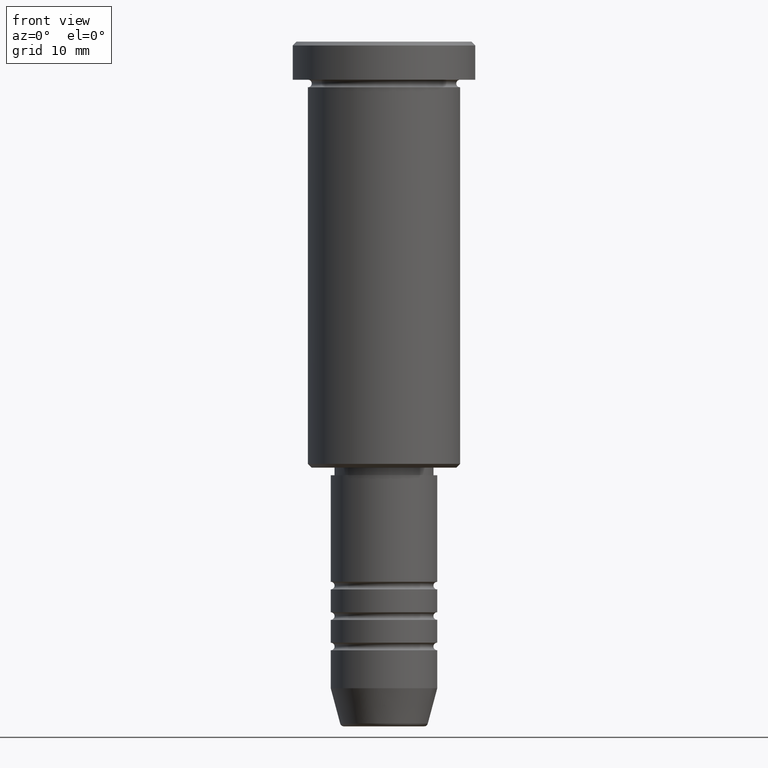
[diagram: clean part render]
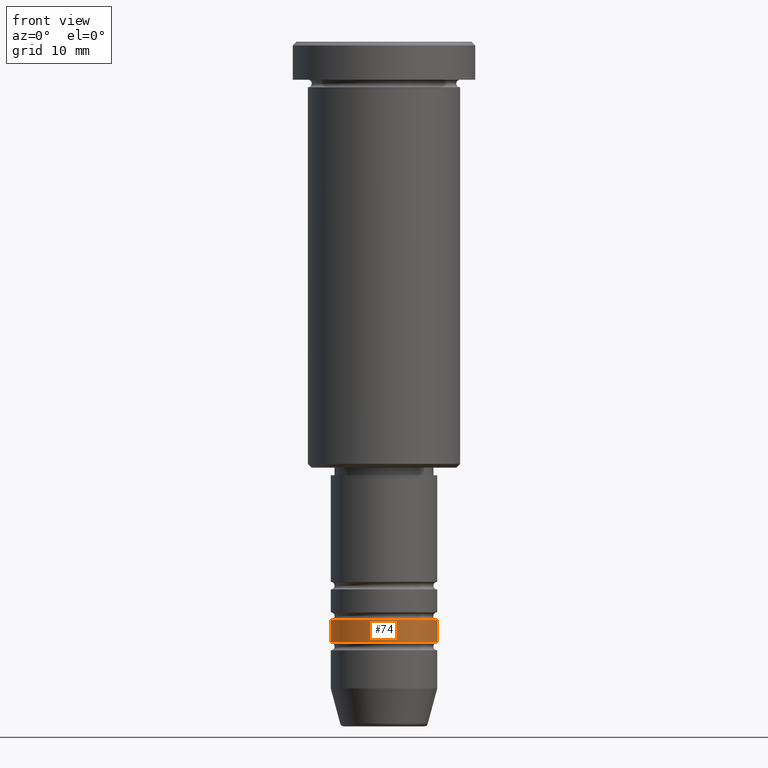
[diagram: same view with one face highlighted and labeled with its STEP entity id]
A machine part, front view. The second image highlights one B-rep face of the part: STEP entity #74.
In plain terms, the highlighted cylindrical surface (partial cylindrical patch) has radius 7 mm, axis along (-0, -0, 1).
Its self-contained STEP definition (entity closure, byte-faithful):
#2 = LINE ( 'NONE', #736, #337 ) ;
#74 = ADVANCED_FACE ( 'NONE', ( #371 ), #278, .T. ) ;
#97 = EDGE_CURVE ( 'NONE', #102, #602, #2, .T. ) ;
#102 = VERTEX_POINT ( 'NONE', #1011 ) ;
#106 = CARTESIAN_POINT ( 'NONE',  ( 7.000000000000000888, 0.000000000000000000, 0.000000000000000000 ) ) ;
#120 = EDGE_LOOP ( 'NONE', ( #1089, #390, #309, #186 ) ) ;
#186 = ORIENTED_EDGE ( 'NONE', *, *, #904, .F. ) ;
#278 = CYLINDRICAL_SURFACE ( 'NONE', #776, 7.000000000000000888 ) ;
#303 = AXIS2_PLACEMENT_3D ( 'NONE', #1013, #1090, #734 ) ;
#309 = ORIENTED_EDGE ( 'NONE', *, *, #890, .T. ) ;
#331 = VERTEX_POINT ( 'NONE', #796 ) ;
#337 = VECTOR ( 'NONE', #1099, 1000.000000000000000 ) ;
#371 = FACE_OUTER_BOUND ( 'NONE', #120, .T. ) ;
#373 = DIRECTION ( 'NONE',  ( 1.000000000000000000, 0.000000000000000000, 0.000000000000000000 ) ) ;
#375 = DIRECTION ( 'NONE',  ( 1.000000000000000000, 0.000000000000000000, 0.000000000000000000 ) ) ;
#390 = ORIENTED_EDGE ( 'NONE', *, *, #1000, .T. ) ;
#460 = CIRCLE ( 'NONE', #1155, 7.000000000000000888 ) ;
#464 = CARTESIAN_POINT ( 'NONE',  ( 0.000000000000000000, 0.000000000000000000, -78.99999999999997158 ) ) ;
#518 = VERTEX_POINT ( 'NONE', #832 ) ;
#573 = VECTOR ( 'NONE', #921, 1000.000000000000000 ) ;
#602 = VERTEX_POINT ( 'NONE', #778 ) ;
#625 = CIRCLE ( 'NONE', #303, 7.000000000000000000 ) ;
#638 = CARTESIAN_POINT ( 'NONE',  ( 0.000000000000000000, 0.000000000000000000, 0.000000000000000000 ) ) ;
#651 = DIRECTION ( 'NONE',  ( -0.000000000000000000, -0.000000000000000000, 1.000000000000000000 ) ) ;
#729 = LINE ( 'NONE', #106, #573 ) ;
#734 = DIRECTION ( 'NONE',  ( 1.000000000000000000, 0.000000000000000000, 0.000000000000000000 ) ) ;
#736 = CARTESIAN_POINT ( 'NONE',  ( -7.000000000000000888, 8.572527594031474176E-16, 0.000000000000000000 ) ) ;
#776 = AXIS2_PLACEMENT_3D ( 'NONE', #638, #1003, #375 ) ;
#778 = CARTESIAN_POINT ( 'NONE',  ( -7.000000000000000000, 8.572527594031473190E-16, -75.99999999999998579 ) ) ;
#796 = CARTESIAN_POINT ( 'NONE',  ( 7.000000000000000000, 0.000000000000000000, -75.99999999999998579 ) ) ;
#832 = CARTESIAN_POINT ( 'NONE',  ( 7.000000000000000888, 0.000000000000000000, -78.99999999999997158 ) ) ;
#890 = EDGE_CURVE ( 'NONE', #518, #331, #729, .T. ) ;
#904 = EDGE_CURVE ( 'NONE', #602, #331, #625, .T. ) ;
#921 = DIRECTION ( 'NONE',  ( -0.000000000000000000, -0.000000000000000000, 1.000000000000000000 ) ) ;
#1000 = EDGE_CURVE ( 'NONE', #102, #518, #460, .T. ) ;
#1003 = DIRECTION ( 'NONE',  ( -0.000000000000000000, -0.000000000000000000, 1.000000000000000000 ) ) ;
#1011 = CARTESIAN_POINT ( 'NONE',  ( -7.000000000000000888, 8.572527594031474176E-16, -78.99999999999997158 ) ) ;
#1013 = CARTESIAN_POINT ( 'NONE',  ( 0.000000000000000000, 0.000000000000000000, -75.99999999999998579 ) ) ;
#1089 = ORIENTED_EDGE ( 'NONE', *, *, #97, .F. ) ;
#1090 = DIRECTION ( 'NONE',  ( -0.000000000000000000, -0.000000000000000000, 1.000000000000000000 ) ) ;
#1099 = DIRECTION ( 'NONE',  ( -0.000000000000000000, -0.000000000000000000, 1.000000000000000000 ) ) ;
#1155 = AXIS2_PLACEMENT_3D ( 'NONE', #464, #651, #373 ) ;